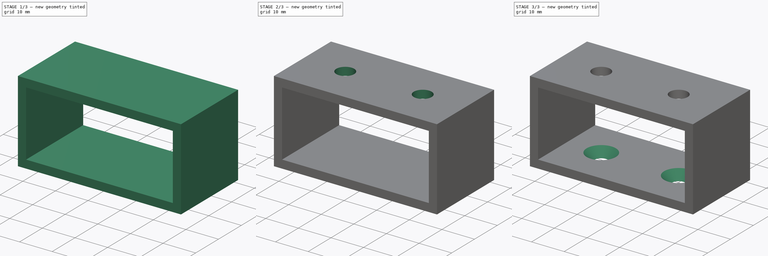
[diagram: build sequence overview — one tinted view per stage of 3, left to right]
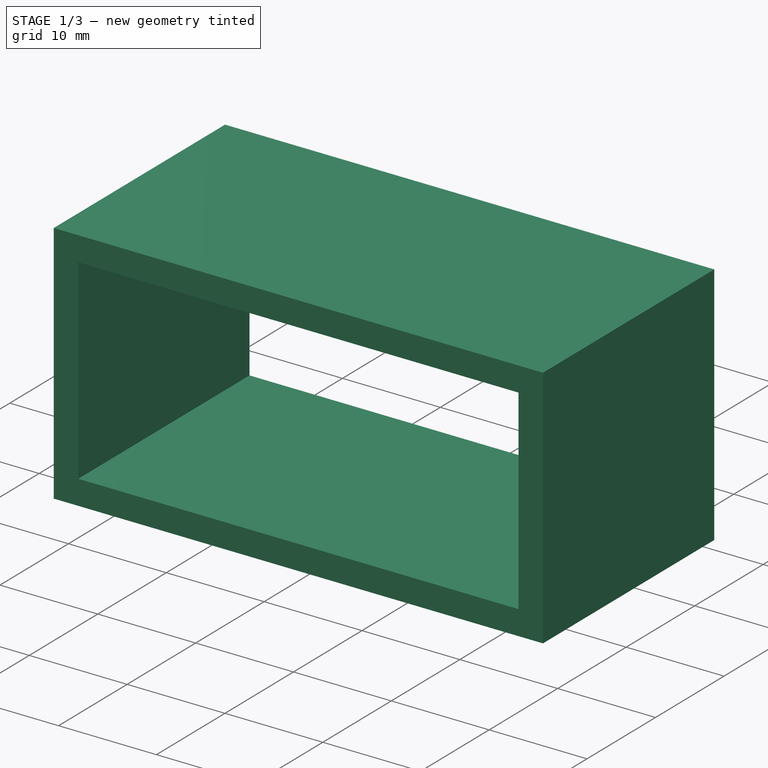
[diagram: stage 1 of 3 — iso view after this stage's code; geometry added in this stage tinted green]
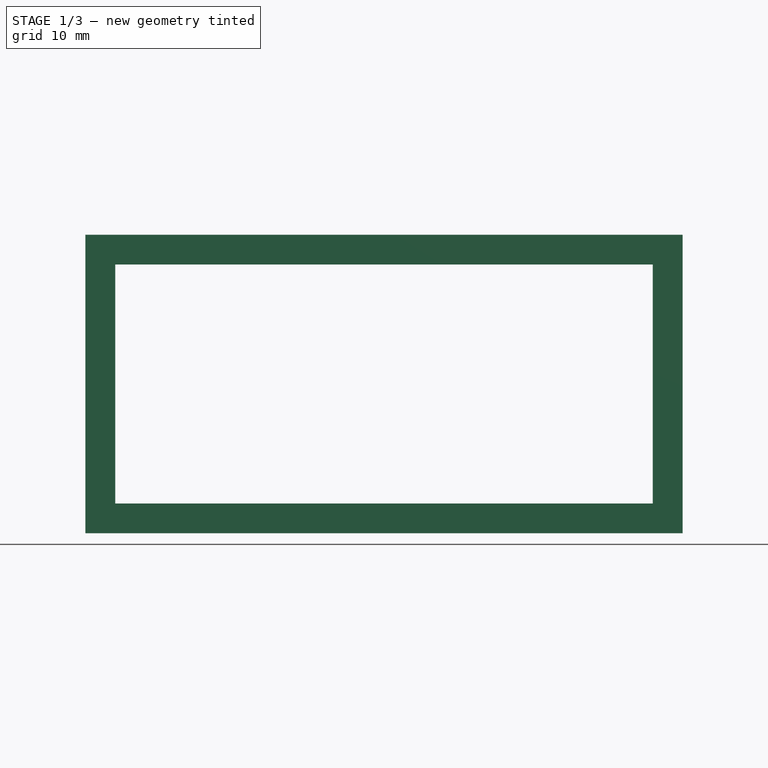
[diagram: stage 1 of 3 — front view after this stage's code; geometry added in this stage tinted green]
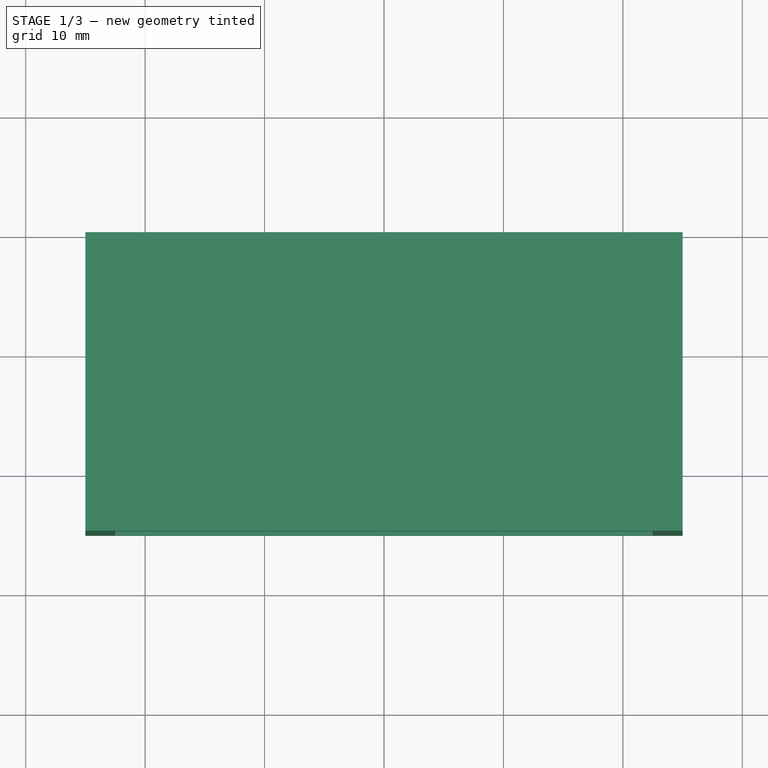
[diagram: stage 1 of 3 — top view after this stage's code; geometry added in this stage tinted green]
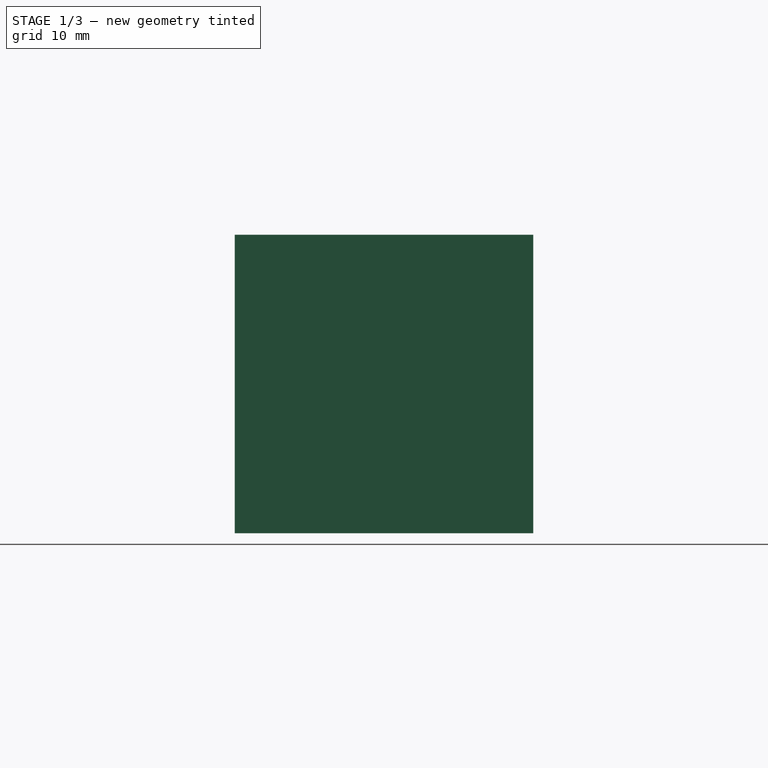
[diagram: stage 1 of 3 — right view after this stage's code; geometry added in this stage tinted green]
FCSTD DOCUMENT  (FreeCAD 0.20R29603 (Git))
Label: BlueHandleNeedNoseToolHolder
License: All rights reserved
LicenseURL: http://en.wikipedia.org/wiki/All_rights_reserved
objects: Sketcher::SketchObject×4, PartDesign::Pocket×3, PartDesign::Plane×2, Spreadsheet::Sheet×1, PartDesign::Pad×1, PartDesign::Chamfer×1, PartDesign::Body×1, App::Part×1
note: 17 computed .brp shape members not serialized (recipe doc carries the construction recipe); baked Part::Feature solids carry a one-line shape summary decoded from their .brp

FEATURE [Spreadsheet::Sheet] Spreadsheet  label="m"
  cells = A1=tool_width; B1(tool_width)=45; A2=tool_depth; B2(tool_depth)=20; A3=holder_width; B3(holder_width)==B1 + B6; C3=Calculated, Do not change; A4=holder_depth; B4(holder_depth)==B2 + B6; C4=Calculated, Do not change; A5=holder_height; B5(holder_height)=25; C5=May Need to calculate this as well; A6=wall_thickness; B6(wall_thickness)=2.5; A7=screwhead_circumference; B7(screwhead_circumference)=7.24; A8=screwhead_height; B8(screwhead_height)=2.5; A9=screw_shaft_circumference; B9(screw_shaft_circumference)=4; A10=Drill_Bit_Circumference; B10(Drill_Bit_Circumference)=5.5
FEATURE [Sketcher::SketchObject] Sketch001  label="Tool001"
  FullyConstrained = true
  MapMode = 5
  Placement = pos=(0,0,0) rot=(1,0,0;1.5708rad)
  Support = -> [XZ_Plane001]
  expr: Constraints[10] = <<m>>.tool_width
  expr: Constraints[11] = <<m>>.tool_depth
  sketch-geometry (5):
    g0: LineSegment StartX=-22.5 StartY=10 StartZ=0 EndX=-22.5 EndY=-10 EndZ=0
    g1: LineSegment StartX=-22.5 StartY=-10 StartZ=0 EndX=22.5 EndY=-10 EndZ=0
    g2: LineSegment StartX=22.5 StartY=-10 StartZ=0 EndX=22.5 EndY=10 EndZ=0
    g3: LineSegment StartX=22.5 StartY=10 StartZ=0 EndX=-22.5 EndY=10 EndZ=0
    g4: GeomPoint X=0 Y=0 Z=0
  constraints (12):
    c: Coincident(g0,g1)
    c: Coincident(g1,g2)
    c: Coincident(g2,g3)
    c: Coincident(g3,g0)
    c: Horizontal(g1)
    c: Horizontal(g3)
    c: Vertical(g0)
    c: Vertical(g2)
    c: Symmetric(g1,g0,g4)
    c: Coincident(g4,g-1)
    c: DistanceX(g3,g3) = 45
    c: DistanceY(g2,g2) = 20
FEATURE [Sketcher::SketchObject] Sketch  label="HolderOuter001"
  ExternalGeometry = -> [Sketch001]
  FullyConstrained = true
  MapMode = 5
  Placement = pos=(0,0,0) rot=(1,0,0;1.5708rad)
  Support = -> [XZ_Plane001]
  expr: Constraints[10] = <<m>>.wall_thickness
  expr: Constraints[11] = <<m>>.wall_thickness
  sketch-geometry (5):
    g0: LineSegment StartX=-25 StartY=12.5 StartZ=0 EndX=-25 EndY=-12.5 EndZ=0
    g1: LineSegment StartX=-25 StartY=-12.5 StartZ=0 EndX=25 EndY=-12.5 EndZ=0
    g2: LineSegment StartX=25 StartY=-12.5 StartZ=0 EndX=25 EndY=12.5 EndZ=0
    g3: LineSegment StartX=25 StartY=12.5 StartZ=0 EndX=-25 EndY=12.5 EndZ=0
    g4: GeomPoint X=0 Y=0 Z=0
  constraints (12):
    c: Coincident(g0,g1)
    c: Coincident(g1,g2)
    c: Coincident(g2,g3)
    c: Coincident(g3,g0)
    c: Horizontal(g1)
    c: Horizontal(g3)
    c: Vertical(g0)
    c: Vertical(g2)
    c: Symmetric(g1,g0,g4)
    c: Coincident(g4,g-1)
    c: DistanceX(g0,g-4) = 2.5
    c: DistanceY(g-4,g0) = 2.5
FEATURE [PartDesign::Pad] Pad  label="HolderOuter"
  Direction = (0,-1,-2e-16)
  Length = 25
  Length2 = 10
  Placement = pos=(0,0,0) rot=(1,0,0;1.5708rad)
  Profile = -> Sketch
  ReferenceAxis = -> Sketch [N_Axis]
  Type = 0
  expr: Length = <<m>>.holder_height
FEATURE [PartDesign::Pocket] Pocket  label="Tool"
  BaseFeature = -> Pad
  Direction = (0,1,2e-16)
  Length = 5
  Length2 = 5
  Midplane = true
  Placement = pos=(0,0,0) rot=(1,0,0;1.5708rad)
  Profile = -> Sketch001
  ReferenceAxis = -> Sketch001 [N_Axis]
  Type = 1
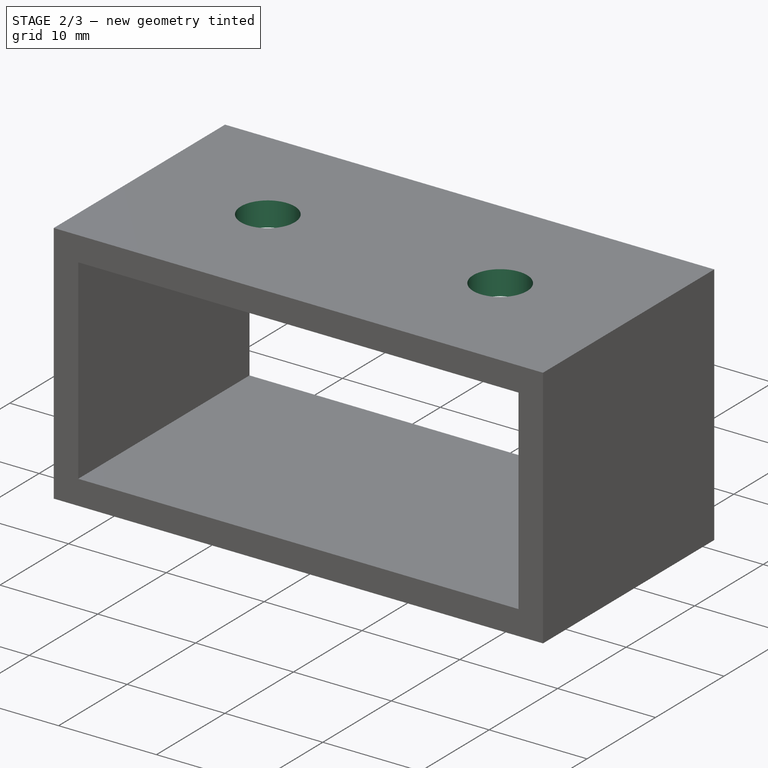
[diagram: stage 2 of 3 — iso view after this stage's code; geometry added in this stage tinted green]
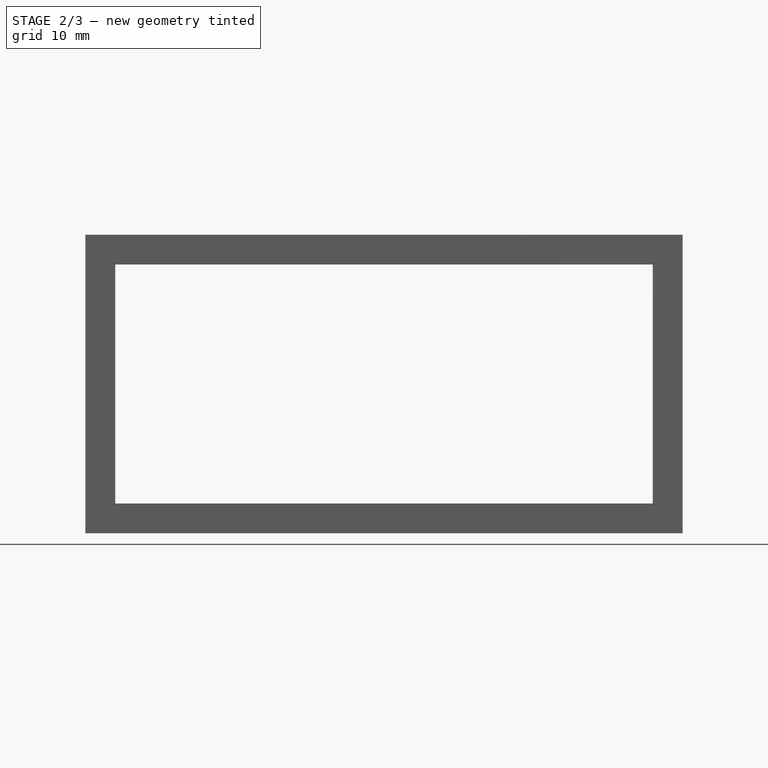
[diagram: stage 2 of 3 — front view after this stage's code; geometry added in this stage tinted green]
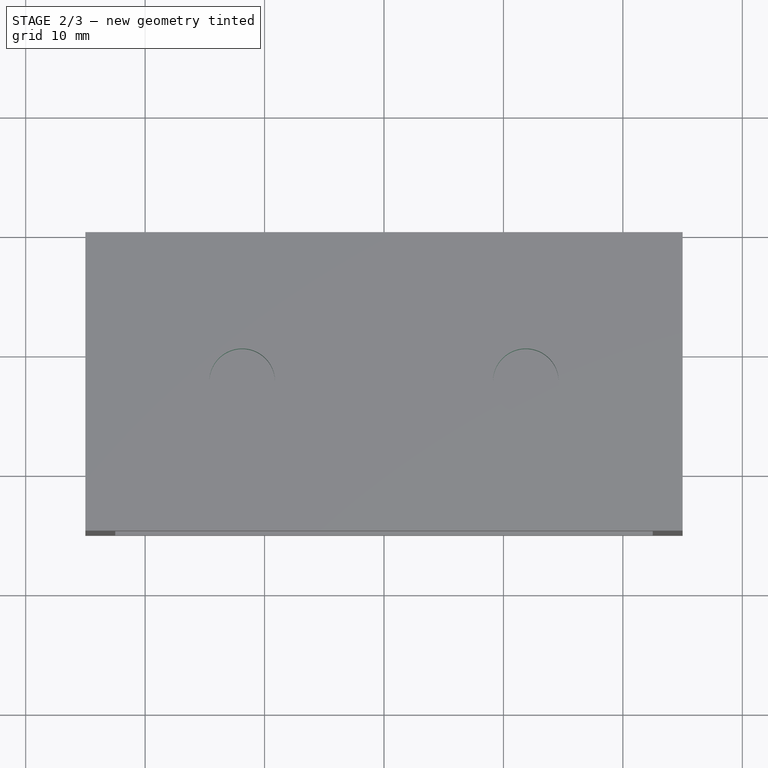
[diagram: stage 2 of 3 — top view after this stage's code; geometry added in this stage tinted green]
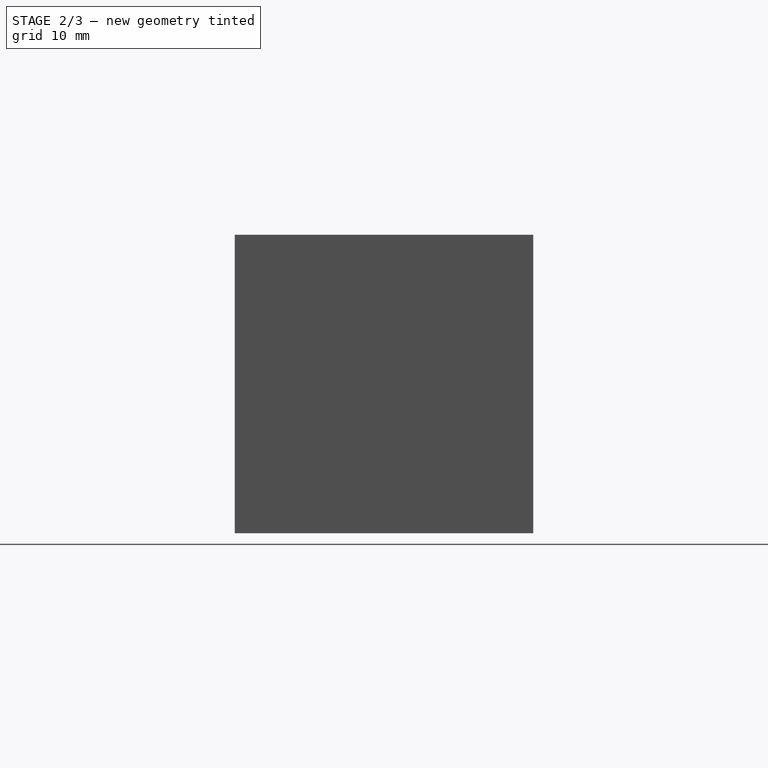
[diagram: stage 2 of 3 — right view after this stage's code; geometry added in this stage tinted green]
FEATURE [PartDesign::Plane] DatumPlane
  Length = 60
  MapMode = 5
  Placement = pos=(0,-2.8e-15,12.5) rot=(0,0,1;3.14159rad)
  ResizeMode = 0
  Support = -> [Pocket]
  Width = 60
FEATURE [Sketcher::SketchObject] Sketch002  label="DrillPocket001"
  ExternalGeometry = -> [Pocket]
  FullyConstrained = true
  MapMode = 5
  Placement = pos=(0,-2.8e-15,12.5) rot=(0,0,1;3.14159rad)
  Support = -> [DatumPlane]
  expr: Constraints[2] = <<m>>.Drill_Bit_Circumference
  expr: Constraints[3] = <<m>>.holder_width / 4
  expr: Constraints[4] = <<m>>.holder_width / 2
  expr: Constraints[5] = <<m>>.holder_height / 2
  sketch-geometry (2):
    g0: Circle CenterX=-11.875 CenterY=12.5 CenterZ=0 NormalX=0 NormalY=0 NormalZ=1 AngleXU=0 Radius=2.75
    g1: Circle CenterX=11.875 CenterY=12.5 CenterZ=0 NormalX=0 NormalY=0 NormalZ=1 AngleXU=0 Radius=2.75
  constraints (6):
    c: Equal(g0,g1)
    c: Horizontal(g0,g1)
    c: Diameter(g1) = 5.5
    c: DistanceX(g0,g-1) = 11.875
    c: DistanceX(g0,g1) = 23.75
    c: DistanceY(g-1,g0) = 12.5
FEATURE [PartDesign::Pocket] Pocket001  label="DrillPocket"
  BaseFeature = -> Pocket
  Direction = (0,2e-16,-1)
  Length = 0
  Length2 = 5
  Offset = 1
  Placement = pos=(0,0,0) rot=(1,0,0;1.5708rad)
  Profile = -> Sketch002
  ReferenceAxis = -> Sketch002 [N_Axis]
  Type = 2
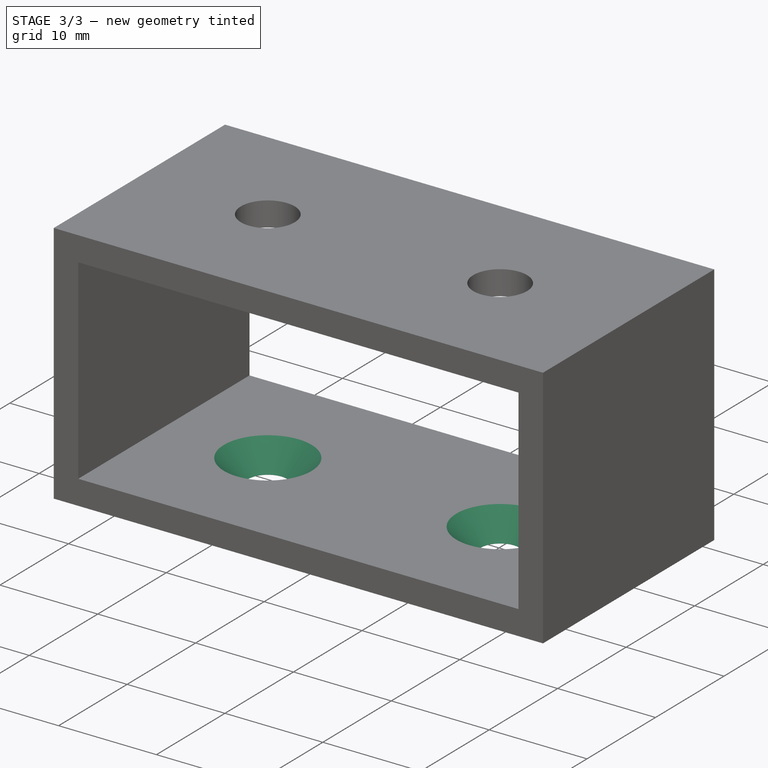
[diagram: stage 3 of 3 — iso view after this stage's code; geometry added in this stage tinted green]
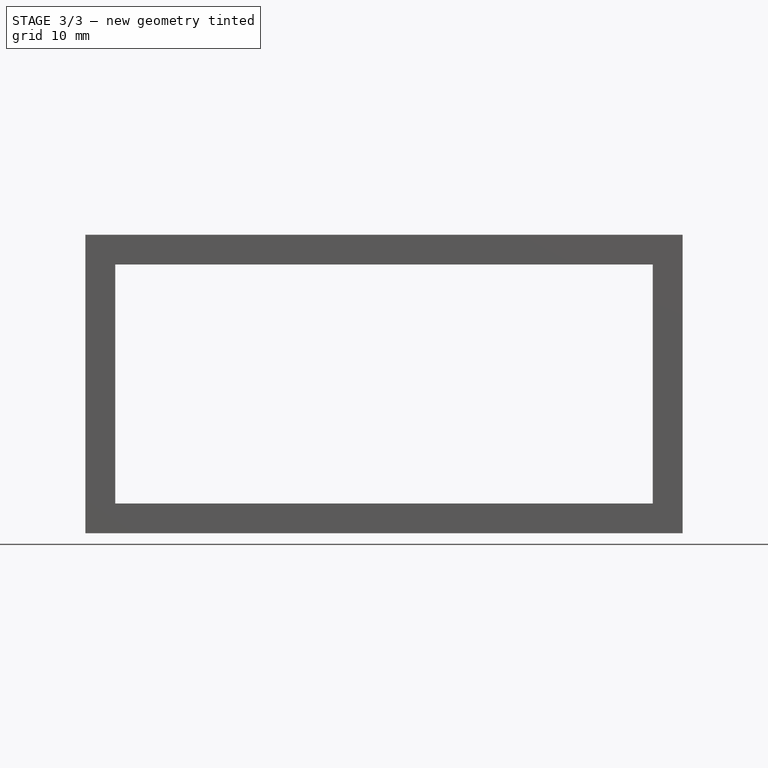
[diagram: stage 3 of 3 — front view after this stage's code; geometry added in this stage tinted green]
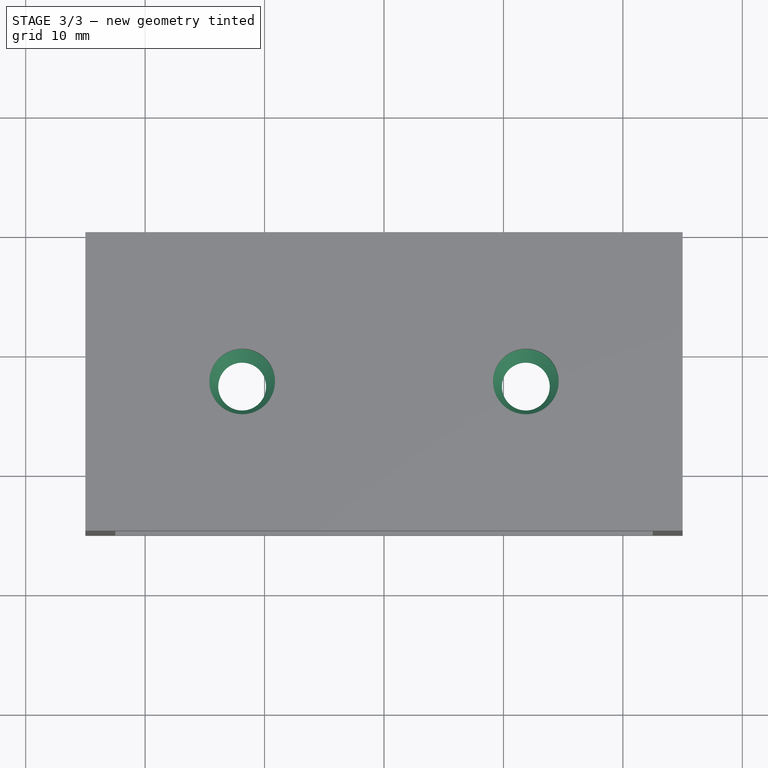
[diagram: stage 3 of 3 — top view after this stage's code; geometry added in this stage tinted green]
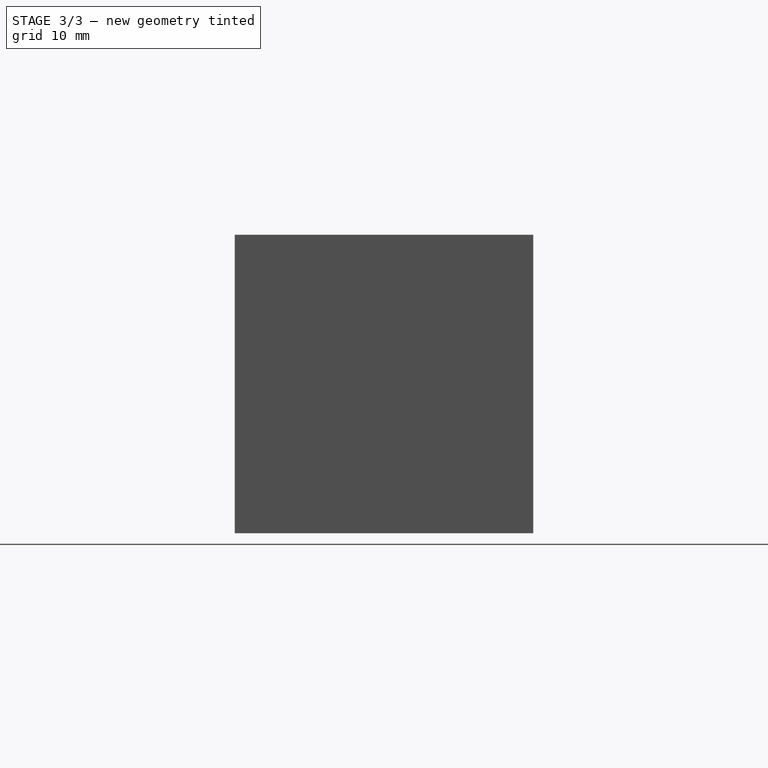
[diagram: stage 3 of 3 — right view after this stage's code; geometry added in this stage tinted green]
FEATURE [PartDesign::Plane] DatumPlane001
  Length = 60
  MapMode = 5
  Placement = pos=(0,2.2e-15,-10) rot=(0,0,1;3.14159rad)
  ResizeMode = 0
  Support = -> [Pocket001]
  Width = 60
FEATURE [Sketcher::SketchObject] Sketch003  label="ScrewPocket001"
  ExternalGeometry = -> [Pocket001]
  FullyConstrained = true
  MapMode = 5
  Placement = pos=(0,2.2e-15,-10) rot=(0,0,1;3.14159rad)
  Support = -> [DatumPlane001]
  expr: Constraints[3] = <<m>>.screw_shaft_circumference
  sketch-geometry (2):
    g0: Circle CenterX=-11.875 CenterY=12.5 CenterZ=0 NormalX=0 NormalY=0 NormalZ=1 AngleXU=0 Radius=2
    g1: Circle CenterX=11.875 CenterY=12.5 CenterZ=0 NormalX=0 NormalY=0 NormalZ=1 AngleXU=0 Radius=2
  constraints (4):
    c: Coincident(g0,g-3)
    c: Coincident(g1,g-4)
    c: Equal(g0,g1)
    c: Diameter(g0) = 4
FEATURE [PartDesign::Pocket] Pocket002  label="ScrewPocket"
  BaseFeature = -> Pocket001
  Direction = (0,2e-16,-1)
  Length = 5
  Length2 = 5
  Placement = pos=(0,0,0) rot=(1,0,0;1.5708rad)
  Profile = -> Sketch003
  ReferenceAxis = -> Sketch003 [N_Axis]
  Type = 2
FEATURE [PartDesign::Chamfer] Chamfer
  Angle = 45
  Base = -> Pocket002 [Edge29,Edge31]
  BaseFeature = -> Pocket002
  ChamferType = 0
  FlipDirection = false
  Placement = pos=(0,0,0) rot=(1,0,0;1.5708rad)
  Size = 2.485
  Size2 = 1
  SupportTransform = false
  UseAllEdges = false
  expr: Size = <<m>>.wall_thickness - 0.015
FEATURE [PartDesign::Body] Body
  Group = -> [Sketch,Pad,Sketch001,Pocket,DatumPlane,Sketch002,Pocket001,DatumPlane001,Sketch003,Pocket002,Chamfer]
  Origin = -> Origin001
  Tip = -> Chamfer
FEATURE [App::Part] Part
  Group = -> [Body]
  Origin = -> Origin
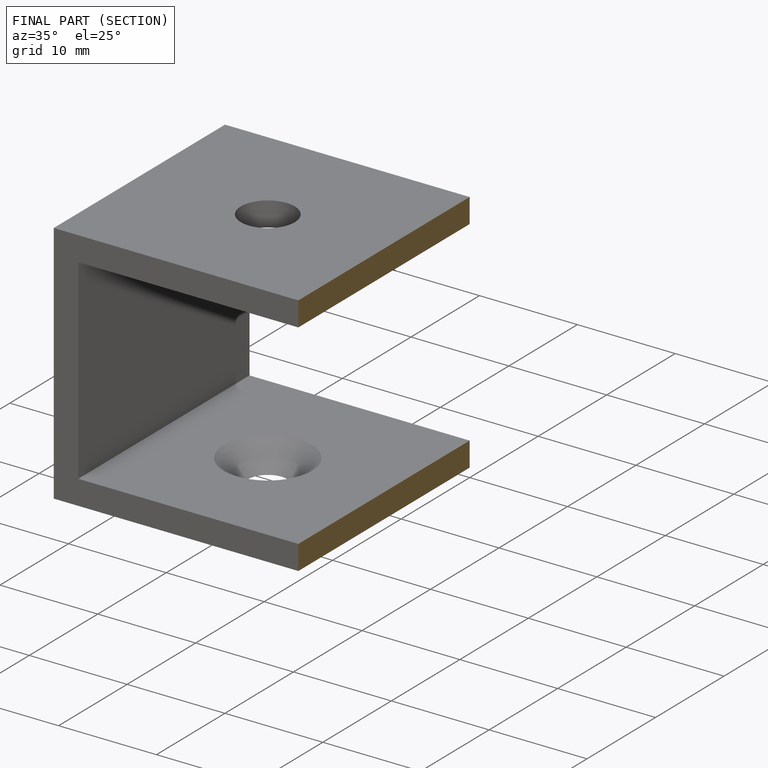
[diagram: finished part — half-section view (interior)]
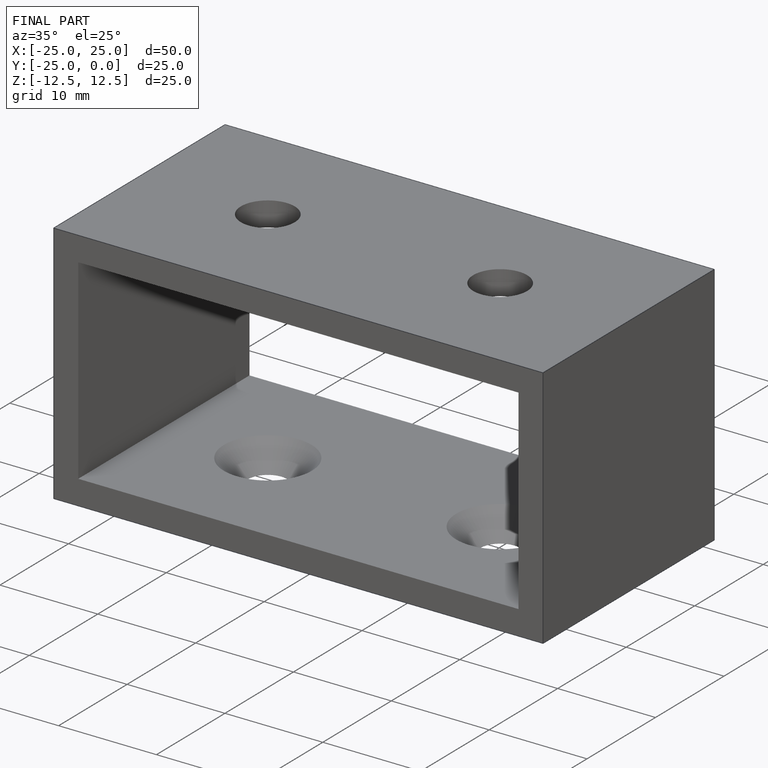
[diagram: finished part — iso view with bounding-box wireframe]
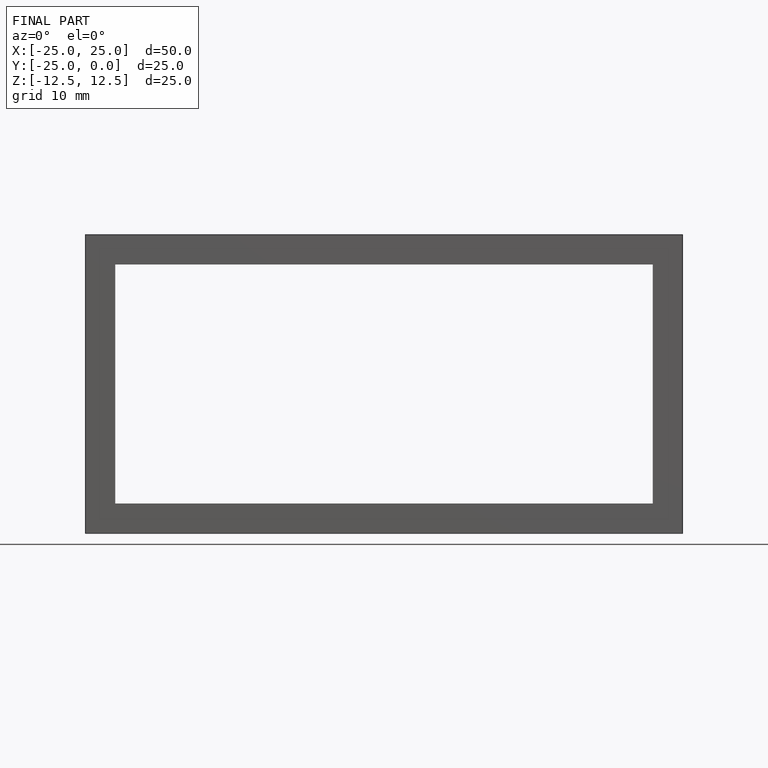
[diagram: finished part — front view with bounding-box wireframe]
